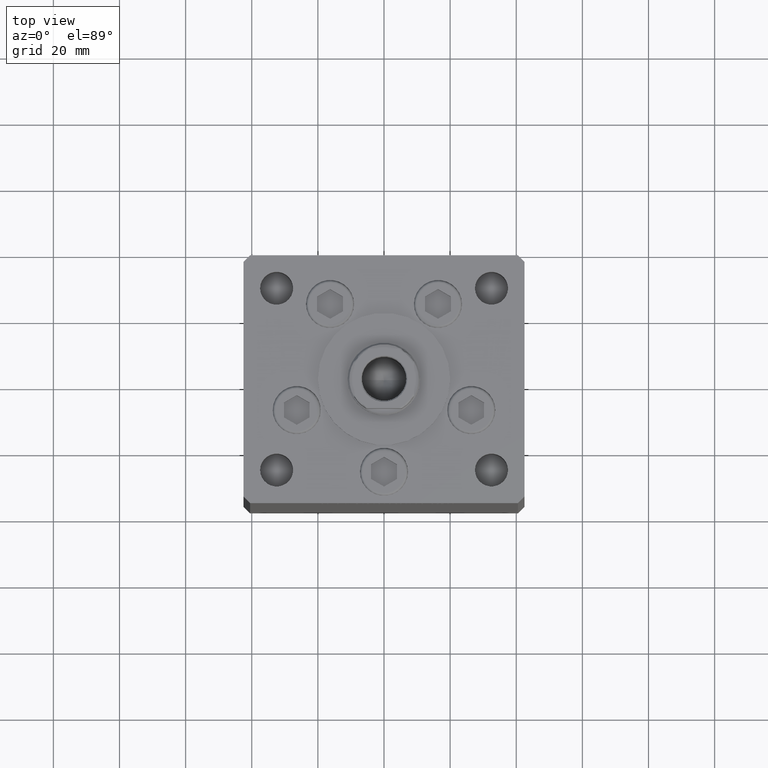
[diagram: clean part render]
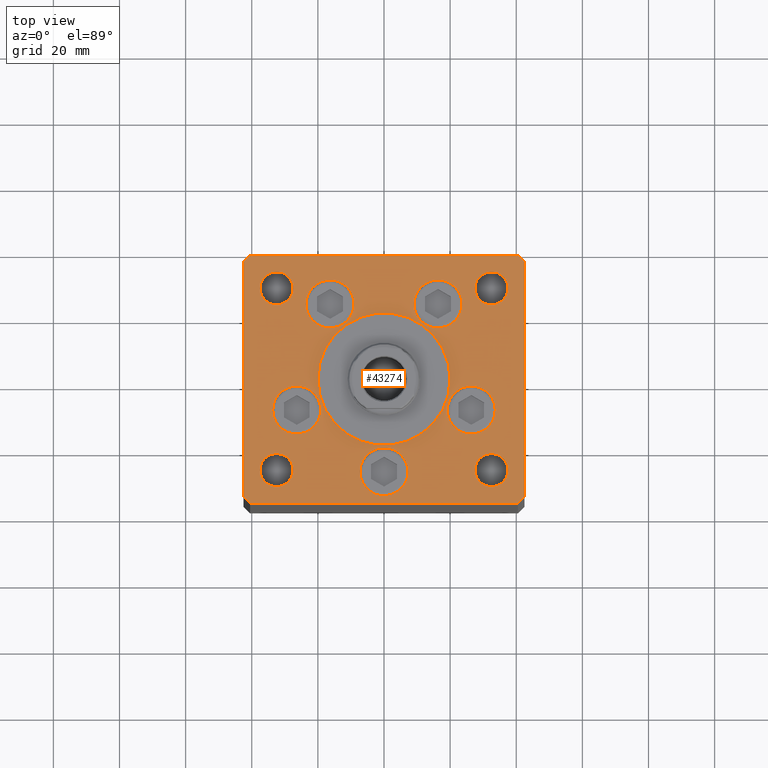
[diagram: same view with one face highlighted and labeled with its STEP entity id]
A machine part, top view. The second image highlights one B-rep face of the part: STEP entity #43274.
In plain terms, the highlighted planar face has unit normal (0, 0, 1).
Its self-contained STEP definition (entity closure, byte-faithful):
#253 = DIRECTION ( 'NONE',  ( 0.000000000000000000, 0.000000000000000000, 1.000000000000000000 ) ) ;
#510 = VERTEX_POINT ( 'NONE', #41669 ) ;
#1091 = DIRECTION ( 'NONE',  ( -0.000000000000000000, -0.000000000000000000, -1.000000000000000000 ) ) ;
#1266 = EDGE_CURVE ( 'NONE', #38069, #46818, #24452, .T. ) ;
#1439 = EDGE_CURVE ( 'NONE', #20438, #7048, #10977, .T. ) ;
#1671 = ORIENTED_EDGE ( 'NONE', *, *, #7689, .F. ) ;
#2365 = DIRECTION ( 'NONE',  ( -0.000000000000000000, 0.000000000000000000, 1.000000000000000000 ) ) ;
#2374 = CARTESIAN_POINT ( 'NONE',  ( 23.57291334290544071, 22.74999999999999289, 0.000000000000000000 ) ) ;
#2628 = CIRCLE ( 'NONE', #34638, 4.999999999999997335 ) ;
#2685 = DIRECTION ( 'NONE',  ( 1.000000000000000000, 0.000000000000000000, 0.000000000000000000 ) ) ;
#2713 = VERTEX_POINT ( 'NONE', #26883 ) ;
#2934 = EDGE_CURVE ( 'NONE', #2713, #5088, #37988, .T. ) ;
#3110 = AXIS2_PLACEMENT_3D ( 'NONE', #38840, #31960, #2685 ) ;
#3419 = EDGE_LOOP ( 'NONE', ( #12856, #48027 ) ) ;
#3737 = EDGE_LOOP ( 'NONE', ( #33636, #50733, #48289, #33878, #24489, #14356, #29399, #16216 ) ) ;
#3824 = EDGE_CURVE ( 'NONE', #41419, #38979, #18822, .T. ) ;
#3926 = DIRECTION ( 'NONE',  ( -0.000000000000000000, -0.000000000000000000, -1.000000000000000000 ) ) ;
#4289 = DIRECTION ( 'NONE',  ( 0.7071067811865474617, 0.7071067811865474617, 0.000000000000000000 ) ) ;
#4313 = EDGE_CURVE ( 'NONE', #38979, #21866, #45632, .T. ) ;
#4338 = DIRECTION ( 'NONE',  ( 0.7071067811865487940, -0.7071067811865463515, 0.000000000000000000 ) ) ;
#4422 = CIRCLE ( 'NONE', #33071, 4.999999999999997335 ) ;
#4583 = CARTESIAN_POINT ( 'NONE',  ( -27.50000000000000000, -27.50000000000000355, 0.000000000000000000 ) ) ;
#4619 = CIRCLE ( 'NONE', #42524, 5.000000000000004441 ) ;
#4802 = CIRCLE ( 'NONE', #47771, 4.999999999999997335 ) ;
#5088 = VERTEX_POINT ( 'NONE', #34884 ) ;
#5110 = AXIS2_PLACEMENT_3D ( 'NONE', #13378, #37663, #41112 ) ;
#5238 = CARTESIAN_POINT ( 'NONE',  ( -27.50000000000000000, 27.50000000000000711, 0.000000000000000000 ) ) ;
#5328 = CARTESIAN_POINT ( 'NONE',  ( -16.32291334290544071, 22.74999999999999289, 0.000000000000000000 ) ) ;
#5395 = CARTESIAN_POINT ( 'NONE',  ( 0.000000000000000000, -6.938893903907228378E-15, 0.000000000000000000 ) ) ;
#5424 = EDGE_CURVE ( 'NONE', #23059, #12081, #51532, .T. ) ;
#6003 = VECTOR ( 'NONE', #33755, 1000.000000000000000 ) ;
#6413 = VERTEX_POINT ( 'NONE', #14309 ) ;
#6420 = VECTOR ( 'NONE', #42739, 1000.000000000000000 ) ;
#6504 = CARTESIAN_POINT ( 'NONE',  ( 19.14865316429777664, -9.333333333333328596, 0.000000000000000000 ) ) ;
#6560 = LINE ( 'NONE', #39292, #6565 ) ;
#6565 = VECTOR ( 'NONE', #30311, 1000.000000000000000 ) ;
#6586 = DIRECTION ( 'NONE',  ( 1.000000000000000000, 0.000000000000000000, 0.000000000000000000 ) ) ;
#6646 = DIRECTION ( 'NONE',  ( 0.000000000000000000, 0.000000000000000000, 1.000000000000000000 ) ) ;
#6801 = DIRECTION ( 'NONE',  ( 1.000000000000000000, 0.000000000000000000, 0.000000000000000000 ) ) ;
#7048 = VERTEX_POINT ( 'NONE', #17563 ) ;
#7112 = CARTESIAN_POINT ( 'NONE',  ( -9.072913342905442491, 22.74999999999999289, 0.000000000000000000 ) ) ;
#7173 = DIRECTION ( 'NONE',  ( 1.000000000000000000, 0.000000000000000000, 0.000000000000000000 ) ) ;
#7211 = DIRECTION ( 'NONE',  ( 1.000000000000000000, 0.000000000000000000, 0.000000000000000000 ) ) ;
#7391 = CIRCLE ( 'NONE', #36883, 7.249999999999999112 ) ;
#7667 = VERTEX_POINT ( 'NONE', #47426 ) ;
#7689 = EDGE_CURVE ( 'NONE', #22597, #7667, #22124, .T. ) ;
#8660 = EDGE_CURVE ( 'NONE', #7048, #20438, #10382, .T. ) ;
#8698 = CARTESIAN_POINT ( 'NONE',  ( 0.000000000000000000, -28.00000000000000000, 0.000000000000000000 ) ) ;
#8853 = DIRECTION ( 'NONE',  ( 1.000000000000000000, 0.000000000000000000, 0.000000000000000000 ) ) ;
#8998 = CARTESIAN_POINT ( 'NONE',  ( -32.50000000000000000, -27.50000000000000355, 0.000000000000000000 ) ) ;
#9017 = CIRCLE ( 'NONE', #3110, 7.249999999999999112 ) ;
#9046 = DIRECTION ( 'NONE',  ( 0.000000000000000000, 0.000000000000000000, 1.000000000000000000 ) ) ;
#9160 = DIRECTION ( 'NONE',  ( -1.000000000000000000, -4.283267841918041508E-16, 0.000000000000000000 ) ) ;
#9208 = EDGE_LOOP ( 'NONE', ( #35235, #22266 ) ) ;
#9238 = VERTEX_POINT ( 'NONE', #36298 ) ;
#9489 = CARTESIAN_POINT ( 'NONE',  ( 42.50000000000000711, -35.49999999999992895, 0.000000000000000000 ) ) ;
#9748 = ORIENTED_EDGE ( 'NONE', *, *, #36301, .F. ) ;
#10165 = ORIENTED_EDGE ( 'NONE', *, *, #8660, .F. ) ;
#10322 = EDGE_CURVE ( 'NONE', #35536, #51011, #41586, .T. ) ;
#10348 = AXIS2_PLACEMENT_3D ( 'NONE', #50413, #45696, #46747 ) ;
#10382 = CIRCLE ( 'NONE', #18777, 7.249999999999999112 ) ;
#10819 = CIRCLE ( 'NONE', #36133, 20.00000000000000000 ) ;
#10977 = CIRCLE ( 'NONE', #43847, 7.249999999999999112 ) ;
#11323 = CARTESIAN_POINT ( 'NONE',  ( 27.50000000000000355, 27.49999999999999645, 0.000000000000000000 ) ) ;
#11473 = CARTESIAN_POINT ( 'NONE',  ( 37.50000000000000000, 27.49999999999999645, 0.000000000000000000 ) ) ;
#11506 = EDGE_CURVE ( 'NONE', #47493, #32961, #47521, .T. ) ;
#11575 = PLANE ( 'NONE',  #22619 ) ;
#11989 = AXIS2_PLACEMENT_3D ( 'NONE', #8998, #25088, #41200 ) ;
#12081 = VERTEX_POINT ( 'NONE', #5238 ) ;
#12286 = AXIS2_PLACEMENT_3D ( 'NONE', #8698, #253, #24795 ) ;
#12444 = EDGE_CURVE ( 'NONE', #22857, #510, #26734, .T. ) ;
#12748 = VECTOR ( 'NONE', #4289, 1000.000000000000114 ) ;
#12755 = VERTEX_POINT ( 'NONE', #18477 ) ;
#12856 = ORIENTED_EDGE ( 'NONE', *, *, #32740, .T. ) ;
#12950 = CARTESIAN_POINT ( 'NONE',  ( 16.32291334290544071, 22.74999999999999289, 0.000000000000000000 ) ) ;
#12982 = DIRECTION ( 'NONE',  ( 0.000000000000000000, 0.000000000000000000, 1.000000000000000000 ) ) ;
#13097 = CARTESIAN_POINT ( 'NONE',  ( -32.50000000000000000, -27.50000000000000355, 0.000000000000000000 ) ) ;
#13233 = DIRECTION ( 'NONE',  ( -1.000000000000000000, 0.000000000000000000, 0.000000000000000000 ) ) ;
#13240 = DIRECTION ( 'NONE',  ( 1.000000000000000000, 0.000000000000000000, 0.000000000000000000 ) ) ;
#13378 = CARTESIAN_POINT ( 'NONE',  ( -26.39865316429777664, -9.333333333333330373, 0.000000000000000000 ) ) ;
#13669 = CARTESIAN_POINT ( 'NONE',  ( -37.50000000000000711, 27.50000000000000711, 0.000000000000000000 ) ) ;
#13741 = CARTESIAN_POINT ( 'NONE',  ( 32.50000000000000000, -27.50000000000000355, 0.000000000000000000 ) ) ;
#13799 = AXIS2_PLACEMENT_3D ( 'NONE', #23006, #6646, #7173 ) ;
#13874 = DIRECTION ( 'NONE',  ( 0.000000000000000000, 0.000000000000000000, 1.000000000000000000 ) ) ;
#14309 = CARTESIAN_POINT ( 'NONE',  ( 33.64865316429777664, -9.333333333333330373, 0.000000000000000000 ) ) ;
#14356 = ORIENTED_EDGE ( 'NONE', *, *, #45417, .T. ) ;
#14821 = CARTESIAN_POINT ( 'NONE',  ( -40.50000000000000000, 37.49999999999997158, 0.000000000000000000 ) ) ;
#15249 = ORIENTED_EDGE ( 'NONE', *, *, #10322, .F. ) ;
#15272 = FACE_BOUND ( 'NONE', #40271, .T. ) ;
#15542 = FACE_BOUND ( 'NONE', #31325, .T. ) ;
#16002 = CARTESIAN_POINT ( 'NONE',  ( 0.000000000000000000, -28.00000000000000000, 0.000000000000000000 ) ) ;
#16216 = ORIENTED_EDGE ( 'NONE', *, *, #12444, .T. ) ;
#16309 = DIRECTION ( 'NONE',  ( -1.000000000000000000, 0.000000000000000000, 0.000000000000000000 ) ) ;
#16332 = EDGE_CURVE ( 'NONE', #510, #16987, #36533, .T. ) ;
#16571 = CARTESIAN_POINT ( 'NONE',  ( 32.50000000000000000, -27.50000000000000355, 0.000000000000000000 ) ) ;
#16673 = EDGE_CURVE ( 'NONE', #9238, #12755, #2628, .T. ) ;
#16732 = CARTESIAN_POINT ( 'NONE',  ( -42.50000000000000000, -35.50000000000004263, 0.000000000000000000 ) ) ;
#16987 = VERTEX_POINT ( 'NONE', #48531 ) ;
#17406 = ORIENTED_EDGE ( 'NONE', *, *, #44704, .F. ) ;
#17563 = CARTESIAN_POINT ( 'NONE',  ( -23.57291334290544071, 22.74999999999999289, 0.000000000000000000 ) ) ;
#18477 = CARTESIAN_POINT ( 'NONE',  ( 37.50000000000000000, -27.50000000000000355, 0.000000000000000000 ) ) ;
#18524 = EDGE_CURVE ( 'NONE', #32961, #47493, #48151, .T. ) ;
#18537 = AXIS2_PLACEMENT_3D ( 'NONE', #46803, #43376, #7211 ) ;
#18777 = AXIS2_PLACEMENT_3D ( 'NONE', #37985, #26107, #29550 ) ;
#18790 = CARTESIAN_POINT ( 'NONE',  ( -32.50000000000000000, 27.50000000000000711, 0.000000000000000000 ) ) ;
#18822 = LINE ( 'NONE', #48091, #12748 ) ;
#18976 = FACE_BOUND ( 'NONE', #27606, .T. ) ;
#19488 = FACE_BOUND ( 'NONE', #32707, .T. ) ;
#20052 = VERTEX_POINT ( 'NONE', #4583 ) ;
#20132 = CARTESIAN_POINT ( 'NONE',  ( 32.50000000000000000, 27.49999999999999645, 0.000000000000000000 ) ) ;
#20374 = VERTEX_POINT ( 'NONE', #49083 ) ;
#20438 = VERTEX_POINT ( 'NONE', #7112 ) ;
#20453 = CARTESIAN_POINT ( 'NONE',  ( 42.50000000000000711, -35.49999999999992895, 0.000000000000000000 ) ) ;
#20553 = EDGE_CURVE ( 'NONE', #12755, #9238, #4422, .T. ) ;
#20663 = DIRECTION ( 'NONE',  ( 1.000000000000000000, 0.000000000000000000, 0.000000000000000000 ) ) ;
#21113 = EDGE_CURVE ( 'NONE', #20052, #20374, #36446, .T. ) ;
#21486 = DIRECTION ( 'NONE',  ( 0.000000000000000000, 0.000000000000000000, 1.000000000000000000 ) ) ;
#21644 = DIRECTION ( 'NONE',  ( 1.000000000000000000, 0.000000000000000000, 0.000000000000000000 ) ) ;
#21866 = VERTEX_POINT ( 'NONE', #24311 ) ;
#22124 = CIRCLE ( 'NONE', #33099, 7.250000000000000000 ) ;
#22266 = ORIENTED_EDGE ( 'NONE', *, *, #11506, .F. ) ;
#22299 = ORIENTED_EDGE ( 'NONE', *, *, #39456, .F. ) ;
#22564 = CARTESIAN_POINT ( 'NONE',  ( 0.000000000000000000, -6.938893903907228378E-15, 0.000000000000000000 ) ) ;
#22597 = VERTEX_POINT ( 'NONE', #47884 ) ;
#22619 = AXIS2_PLACEMENT_3D ( 'NONE', #43778, #2365, #6586 ) ;
#22857 = VERTEX_POINT ( 'NONE', #50401 ) ;
#23006 = CARTESIAN_POINT ( 'NONE',  ( 16.32291334290544071, 22.74999999999999289, 0.000000000000000000 ) ) ;
#23059 = VERTEX_POINT ( 'NONE', #13669 ) ;
#24311 = CARTESIAN_POINT ( 'NONE',  ( 42.50000000000001421, 35.50000000000002132, 0.000000000000000000 ) ) ;
#24452 = CIRCLE ( 'NONE', #18537, 4.999999999999997335 ) ;
#24489 = ORIENTED_EDGE ( 'NONE', *, *, #37301, .T. ) ;
#24494 = CARTESIAN_POINT ( 'NONE',  ( -20.00000000000000000, -6.938893903907228378E-15, 0.000000000000000000 ) ) ;
#24766 = VECTOR ( 'NONE', #42808, 1000.000000000000000 ) ;
#24780 = EDGE_CURVE ( 'NONE', #44691, #22857, #27731, .T. ) ;
#24795 = DIRECTION ( 'NONE',  ( 1.000000000000000000, 0.000000000000000000, 0.000000000000000000 ) ) ;
#24969 = EDGE_LOOP ( 'NONE', ( #15249, #17406 ) ) ;
#25088 = DIRECTION ( 'NONE',  ( 0.000000000000000000, 0.000000000000000000, 1.000000000000000000 ) ) ;
#25183 = DIRECTION ( 'NONE',  ( 1.000000000000000000, 0.000000000000000000, 0.000000000000000000 ) ) ;
#25989 = ORIENTED_EDGE ( 'NONE', *, *, #50023, .F. ) ;
#26107 = DIRECTION ( 'NONE',  ( 0.000000000000000000, 0.000000000000000000, 1.000000000000000000 ) ) ;
#26203 = CARTESIAN_POINT ( 'NONE',  ( -42.50000000000000711, 35.50000000000000000, 0.000000000000000000 ) ) ;
#26734 = LINE ( 'NONE', #26203, #43923 ) ;
#26883 = CARTESIAN_POINT ( 'NONE',  ( -33.64865316429777664, -9.333333333333328596, 0.000000000000000000 ) ) ;
#27606 = EDGE_LOOP ( 'NONE', ( #30315, #30333 ) ) ;
#27731 = LINE ( 'NONE', #14821, #24766 ) ;
#28678 = VECTOR ( 'NONE', #4338, 1000.000000000000000 ) ;
#28760 = AXIS2_PLACEMENT_3D ( 'NONE', #12950, #37741, #21644 ) ;
#29399 = ORIENTED_EDGE ( 'NONE', *, *, #24780, .T. ) ;
#29550 = DIRECTION ( 'NONE',  ( 1.000000000000000000, 0.000000000000000000, 0.000000000000000000 ) ) ;
#30311 = DIRECTION ( 'NONE',  ( 1.000000000000000000, 1.370645709413773283E-15, 0.000000000000000000 ) ) ;
#30315 = ORIENTED_EDGE ( 'NONE', *, *, #20553, .T. ) ;
#30333 = ORIENTED_EDGE ( 'NONE', *, *, #16673, .T. ) ;
#31325 = EDGE_LOOP ( 'NONE', ( #31565, #51297 ) ) ;
#31565 = ORIENTED_EDGE ( 'NONE', *, *, #39229, .F. ) ;
#31960 = DIRECTION ( 'NONE',  ( 0.000000000000000000, 0.000000000000000000, 1.000000000000000000 ) ) ;
#32707 = EDGE_LOOP ( 'NONE', ( #25989, #22299 ) ) ;
#32740 = EDGE_CURVE ( 'NONE', #12081, #23059, #4619, .T. ) ;
#32919 = ORIENTED_EDGE ( 'NONE', *, *, #1439, .F. ) ;
#32961 = VERTEX_POINT ( 'NONE', #2374 ) ;
#33071 = AXIS2_PLACEMENT_3D ( 'NONE', #16571, #3926, #16309 ) ;
#33099 = AXIS2_PLACEMENT_3D ( 'NONE', #16002, #48192, #6801 ) ;
#33511 = CARTESIAN_POINT ( 'NONE',  ( 42.50000000000001421, 35.50000000000002132, 0.000000000000000000 ) ) ;
#33636 = ORIENTED_EDGE ( 'NONE', *, *, #16332, .T. ) ;
#33755 = DIRECTION ( 'NONE',  ( 9.773090005503145261E-17, 1.000000000000000000, 0.000000000000000000 ) ) ;
#33878 = ORIENTED_EDGE ( 'NONE', *, *, #4313, .T. ) ;
#33996 = AXIS2_PLACEMENT_3D ( 'NONE', #22564, #38661, #34692 ) ;
#34033 = DIRECTION ( 'NONE',  ( -0.000000000000000000, -0.000000000000000000, -1.000000000000000000 ) ) ;
#34638 = AXIS2_PLACEMENT_3D ( 'NONE', #13741, #1091, #13233 ) ;
#34673 = AXIS2_PLACEMENT_3D ( 'NONE', #46944, #34033, #39044 ) ;
#34692 = DIRECTION ( 'NONE',  ( 1.000000000000000000, 0.000000000000000000, 0.000000000000000000 ) ) ;
#34748 = VERTEX_POINT ( 'NONE', #40871 ) ;
#34884 = CARTESIAN_POINT ( 'NONE',  ( -19.14865316429777664, -9.333333333333330373, 0.000000000000000000 ) ) ;
#34899 = DIRECTION ( 'NONE',  ( -0.000000000000000000, -0.000000000000000000, -1.000000000000000000 ) ) ;
#35235 = ORIENTED_EDGE ( 'NONE', *, *, #18524, .F. ) ;
#35536 = VERTEX_POINT ( 'NONE', #24494 ) ;
#35940 = DIRECTION ( 'NONE',  ( -1.000000000000000000, 0.000000000000000000, 0.000000000000000000 ) ) ;
#36133 = AXIS2_PLACEMENT_3D ( 'NONE', #5395, #21486, #25183 ) ;
#36298 = CARTESIAN_POINT ( 'NONE',  ( 27.50000000000000355, -27.50000000000000355, 0.000000000000000000 ) ) ;
#36301 = EDGE_CURVE ( 'NONE', #7667, #22597, #44324, .T. ) ;
#36446 = CIRCLE ( 'NONE', #11989, 5.000000000000000888 ) ;
#36533 = LINE ( 'NONE', #16732, #28678 ) ;
#36741 = VERTEX_POINT ( 'NONE', #6504 ) ;
#36867 = LINE ( 'NONE', #48994, #36964 ) ;
#36883 = AXIS2_PLACEMENT_3D ( 'NONE', #49210, #49463, #8853 ) ;
#36964 = VECTOR ( 'NONE', #9160, 1000.000000000000000 ) ;
#37301 = EDGE_CURVE ( 'NONE', #21866, #34748, #37469, .T. ) ;
#37469 = LINE ( 'NONE', #33511, #6420 ) ;
#37663 = DIRECTION ( 'NONE',  ( 0.000000000000000000, 0.000000000000000000, 1.000000000000000000 ) ) ;
#37741 = DIRECTION ( 'NONE',  ( 0.000000000000000000, 0.000000000000000000, 1.000000000000000000 ) ) ;
#37821 = AXIS2_PLACEMENT_3D ( 'NONE', #13097, #13874, #41087 ) ;
#37985 = CARTESIAN_POINT ( 'NONE',  ( -16.32291334290544071, 22.74999999999999289, 0.000000000000000000 ) ) ;
#37988 = CIRCLE ( 'NONE', #5110, 7.249999999999999112 ) ;
#38069 = VERTEX_POINT ( 'NONE', #11323 ) ;
#38523 = FACE_BOUND ( 'NONE', #3419, .T. ) ;
#38661 = DIRECTION ( 'NONE',  ( 0.000000000000000000, 0.000000000000000000, 1.000000000000000000 ) ) ;
#38840 = CARTESIAN_POINT ( 'NONE',  ( 26.39865316429777664, -9.333333333333330373, 0.000000000000000000 ) ) ;
#38979 = VERTEX_POINT ( 'NONE', #20453 ) ;
#39044 = DIRECTION ( 'NONE',  ( -1.000000000000000000, 0.000000000000000000, 0.000000000000000000 ) ) ;
#39049 = FACE_BOUND ( 'NONE', #24969, .T. ) ;
#39229 = EDGE_CURVE ( 'NONE', #46818, #38069, #4802, .T. ) ;
#39292 = CARTESIAN_POINT ( 'NONE',  ( -40.50000000000000711, -37.50000000000003553, 0.000000000000000000 ) ) ;
#39456 = EDGE_CURVE ( 'NONE', #36741, #6413, #9017, .T. ) ;
#40271 = EDGE_LOOP ( 'NONE', ( #32919, #10165 ) ) ;
#40626 = CARTESIAN_POINT ( 'NONE',  ( 9.072913342905442491, 22.74999999999999289, 0.000000000000000000 ) ) ;
#40744 = EDGE_LOOP ( 'NONE', ( #45262, #47343 ) ) ;
#40871 = CARTESIAN_POINT ( 'NONE',  ( 40.50000000000000711, 37.50000000000000711, 0.000000000000000000 ) ) ;
#41087 = DIRECTION ( 'NONE',  ( 1.000000000000000000, 0.000000000000000000, 0.000000000000000000 ) ) ;
#41112 = DIRECTION ( 'NONE',  ( 1.000000000000000000, 0.000000000000000000, 0.000000000000000000 ) ) ;
#41200 = DIRECTION ( 'NONE',  ( 1.000000000000000000, 0.000000000000000000, 0.000000000000000000 ) ) ;
#41274 = ORIENTED_EDGE ( 'NONE', *, *, #42701, .F. ) ;
#41419 = VERTEX_POINT ( 'NONE', #41939 ) ;
#41485 = EDGE_CURVE ( 'NONE', #16987, #41419, #6560, .T. ) ;
#41586 = CIRCLE ( 'NONE', #33996, 20.00000000000000000 ) ;
#41669 = CARTESIAN_POINT ( 'NONE',  ( -42.50000000000000000, -35.50000000000004263, 0.000000000000000000 ) ) ;
#41939 = CARTESIAN_POINT ( 'NONE',  ( 40.50000000000001421, -37.49999999999992184, 0.000000000000000000 ) ) ;
#42524 = AXIS2_PLACEMENT_3D ( 'NONE', #18790, #34899, #35940 ) ;
#42626 = EDGE_LOOP ( 'NONE', ( #9748, #1671 ) ) ;
#42701 = EDGE_CURVE ( 'NONE', #5088, #2713, #7391, .T. ) ;
#42739 = DIRECTION ( 'NONE',  ( -0.7071067811865524577, 0.7071067811865426878, 0.000000000000000000 ) ) ;
#42754 = FACE_OUTER_BOUND ( 'NONE', #3737, .T. ) ;
#42808 = DIRECTION ( 'NONE',  ( -0.7071067811865536790, -0.7071067811865414665, 0.000000000000000000 ) ) ;
#42846 = DIRECTION ( 'NONE',  ( 9.773090005503134168E-17, -1.000000000000000000, 0.000000000000000000 ) ) ;
#42932 = CIRCLE ( 'NONE', #37821, 5.000000000000000888 ) ;
#43274 = ADVANCED_FACE ( 'NONE', ( #39049, #15272, #43529, #19488, #46700, #51672, #38523, #15542, #47725, #42754, #18976 ), #11575, .T. ) ;
#43376 = DIRECTION ( 'NONE',  ( 0.000000000000000000, 0.000000000000000000, 1.000000000000000000 ) ) ;
#43529 = FACE_BOUND ( 'NONE', #9208, .T. ) ;
#43778 = CARTESIAN_POINT ( 'NONE',  ( 0.000000000000000000, 0.000000000000000000, 0.000000000000000000 ) ) ;
#43847 = AXIS2_PLACEMENT_3D ( 'NONE', #5328, #12982, #13240 ) ;
#43923 = VECTOR ( 'NONE', #42846, 1000.000000000000000 ) ;
#44324 = CIRCLE ( 'NONE', #12286, 7.250000000000000000 ) ;
#44691 = VERTEX_POINT ( 'NONE', #45765 ) ;
#44704 = EDGE_CURVE ( 'NONE', #51011, #35536, #10819, .T. ) ;
#45262 = ORIENTED_EDGE ( 'NONE', *, *, #21113, .F. ) ;
#45417 = EDGE_CURVE ( 'NONE', #34748, #44691, #36867, .T. ) ;
#45632 = LINE ( 'NONE', #9489, #6003 ) ;
#45696 = DIRECTION ( 'NONE',  ( 0.000000000000000000, 0.000000000000000000, 1.000000000000000000 ) ) ;
#45765 = CARTESIAN_POINT ( 'NONE',  ( -40.50000000000000000, 37.49999999999997158, 0.000000000000000000 ) ) ;
#46176 = EDGE_CURVE ( 'NONE', #20374, #20052, #42932, .T. ) ;
#46226 = CARTESIAN_POINT ( 'NONE',  ( 20.00000000000000000, -4.489600305612522259E-15, 0.000000000000000000 ) ) ;
#46700 = FACE_BOUND ( 'NONE', #42626, .T. ) ;
#46747 = DIRECTION ( 'NONE',  ( 1.000000000000000000, 0.000000000000000000, 0.000000000000000000 ) ) ;
#46803 = CARTESIAN_POINT ( 'NONE',  ( 32.50000000000000000, 27.49999999999999645, 0.000000000000000000 ) ) ;
#46816 = ORIENTED_EDGE ( 'NONE', *, *, #2934, .F. ) ;
#46818 = VERTEX_POINT ( 'NONE', #11473 ) ;
#46944 = CARTESIAN_POINT ( 'NONE',  ( -32.50000000000000000, 27.50000000000000711, 0.000000000000000000 ) ) ;
#47343 = ORIENTED_EDGE ( 'NONE', *, *, #46176, .F. ) ;
#47426 = CARTESIAN_POINT ( 'NONE',  ( 7.250000000000000000, -28.00000000000000000, 0.000000000000000000 ) ) ;
#47493 = VERTEX_POINT ( 'NONE', #40626 ) ;
#47521 = CIRCLE ( 'NONE', #13799, 7.249999999999999112 ) ;
#47725 = FACE_BOUND ( 'NONE', #40744, .T. ) ;
#47771 = AXIS2_PLACEMENT_3D ( 'NONE', #20132, #9046, #20663 ) ;
#47884 = CARTESIAN_POINT ( 'NONE',  ( -7.250000000000000000, -28.00000000000000000, 0.000000000000000000 ) ) ;
#48027 = ORIENTED_EDGE ( 'NONE', *, *, #5424, .T. ) ;
#48091 = CARTESIAN_POINT ( 'NONE',  ( 40.50000000000001421, -37.49999999999992184, 0.000000000000000000 ) ) ;
#48151 = CIRCLE ( 'NONE', #28760, 7.249999999999999112 ) ;
#48192 = DIRECTION ( 'NONE',  ( 0.000000000000000000, 0.000000000000000000, 1.000000000000000000 ) ) ;
#48289 = ORIENTED_EDGE ( 'NONE', *, *, #3824, .T. ) ;
#48531 = CARTESIAN_POINT ( 'NONE',  ( -40.50000000000000711, -37.50000000000003553, 0.000000000000000000 ) ) ;
#48994 = CARTESIAN_POINT ( 'NONE',  ( 40.50000000000000711, 37.50000000000000711, 0.000000000000000000 ) ) ;
#49083 = CARTESIAN_POINT ( 'NONE',  ( -37.50000000000000711, -27.50000000000000355, 0.000000000000000000 ) ) ;
#49095 = CIRCLE ( 'NONE', #10348, 7.249999999999999112 ) ;
#49210 = CARTESIAN_POINT ( 'NONE',  ( -26.39865316429777664, -9.333333333333330373, 0.000000000000000000 ) ) ;
#49463 = DIRECTION ( 'NONE',  ( 0.000000000000000000, 0.000000000000000000, 1.000000000000000000 ) ) ;
#50023 = EDGE_CURVE ( 'NONE', #6413, #36741, #49095, .T. ) ;
#50401 = CARTESIAN_POINT ( 'NONE',  ( -42.50000000000000711, 35.50000000000000000, 0.000000000000000000 ) ) ;
#50413 = CARTESIAN_POINT ( 'NONE',  ( 26.39865316429777664, -9.333333333333330373, 0.000000000000000000 ) ) ;
#50647 = EDGE_LOOP ( 'NONE', ( #41274, #46816 ) ) ;
#50733 = ORIENTED_EDGE ( 'NONE', *, *, #41485, .T. ) ;
#51011 = VERTEX_POINT ( 'NONE', #46226 ) ;
#51297 = ORIENTED_EDGE ( 'NONE', *, *, #1266, .F. ) ;
#51532 = CIRCLE ( 'NONE', #34673, 5.000000000000004441 ) ;
#51672 = FACE_BOUND ( 'NONE', #50647, .T. ) ;